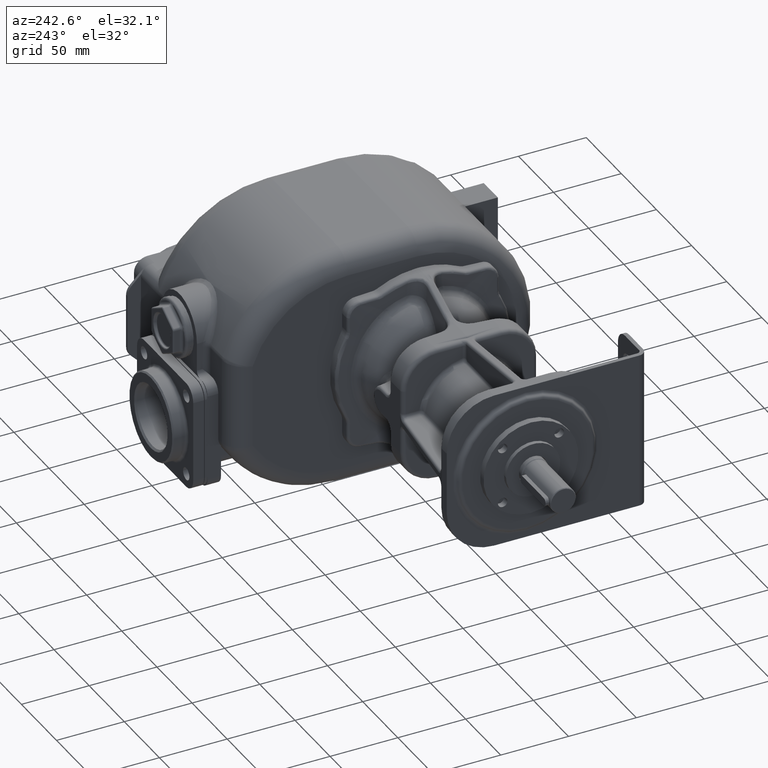
[diagram: clean part render]
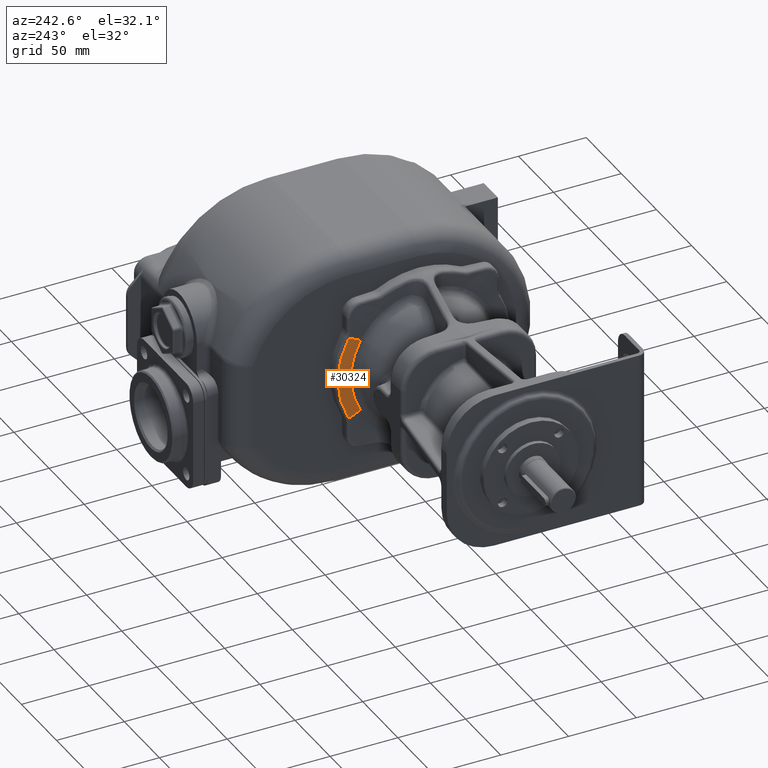
[diagram: same view with one face highlighted and labeled with its STEP entity id]
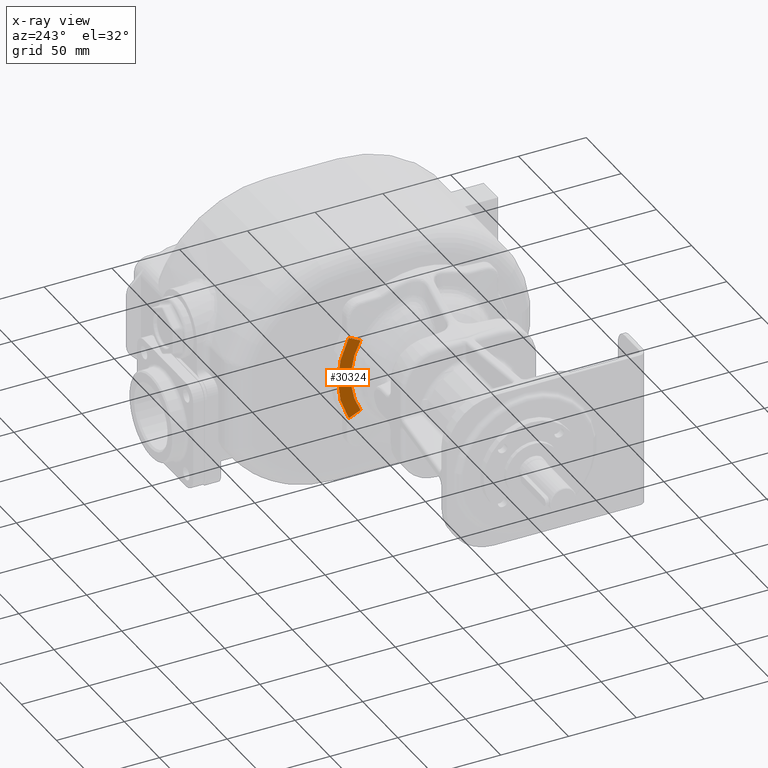
[diagram: x-ray of the same camera — body ghosted, the highlighted face saturated]
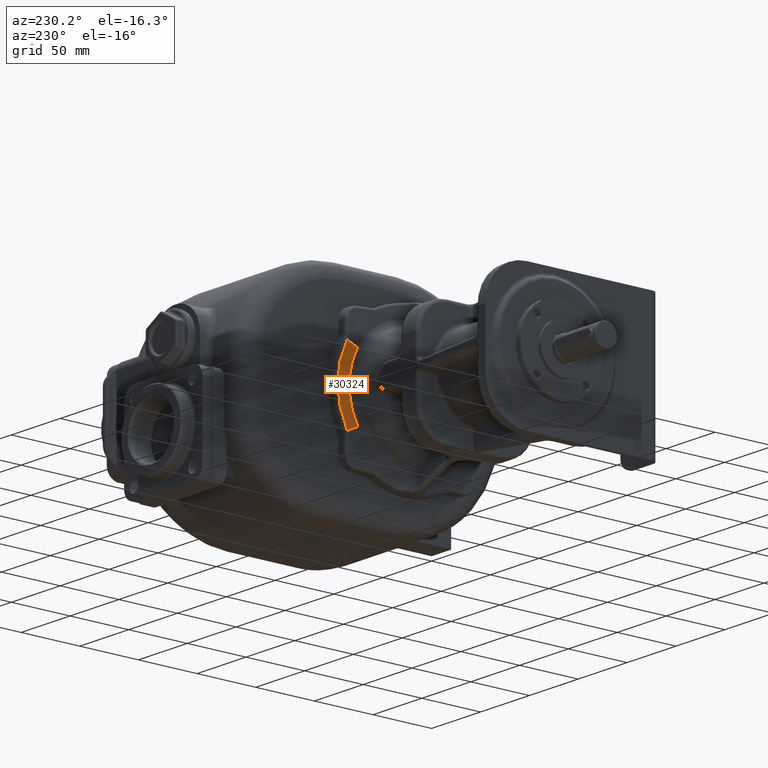
[diagram: same view with one face highlighted and labeled with its STEP entity id]
A machine part, auxiliary view. The second image highlights one B-rep face of the part: STEP entity #30324.
The next image is the same camera in x-ray: the body ghosted, the highlighted face saturated — about 0% of this face is hidden behind the body in this view.
A second angle (auxiliary view) of the same face is appended — the face is thin or edge-on in the first view.
In plain terms, the highlighted conical surface has half-angle 87 deg.
Its self-contained STEP definition (entity closure, byte-faithful):
#7313=CARTESIAN_POINT('',(-7.779622819855E1,1.450565977498E2,
-3.095874498792E1));
#7322=CARTESIAN_POINT('',(-7.779622819855E1,1.450565977498E2,
-3.095874498792E1));
#7323=CARTESIAN_POINT('',(-7.779691626691E1,1.451043890189E2,
-3.084696682974E1));
#7324=CARTESIAN_POINT('',(-7.779806388553E1,1.452033013294E2,
-3.062497038314E1));
#7325=CARTESIAN_POINT('',(-7.779910010205E1,1.453620448852E2,
-3.029589938665E1));
#7326=CARTESIAN_POINT('',(-7.779932993583E1,1.454743085603E2,
-3.008015155920E1));
#7327=CARTESIAN_POINT('',(-7.779932993608E1,1.455321112832E2,
-2.997305846271E1));
#7329=CARTESIAN_POINT('',(-7.779932993608E1,9.E1,0.E0));
#7330=DIRECTION('',(1.E0,0.E0,0.E0));
#7331=DIRECTION('',(0.E0,8.8E-1,-4.749736834815E-1));
#7332=AXIS2_PLACEMENT_3D('',#7329,#7330,#7331);
#7334=CARTESIAN_POINT('',(-7.779932993608E1,1.455321112830E2,2.997305846317E1));
#7335=CARTESIAN_POINT('',(-7.779932993611E1,1.454743078286E2,3.008015291511E1));
#7336=CARTESIAN_POINT('',(-7.779910009382E1,1.453620428584E2,3.029590333531E1));
#7337=CARTESIAN_POINT('',(-7.779806386410E1,1.452032977188E2,3.062497807537E1));
#7338=CARTESIAN_POINT('',(-7.779691619648E1,1.451043847750E2,3.084697647355E1));
#7339=CARTESIAN_POINT('',(-7.779622811526E1,1.450565932593E2,3.095875550185E1));
#7341=CARTESIAN_POINT('',(-7.779622811526E1,1.450565932593E2,3.095875550185E1));
#7342=CARTESIAN_POINT('',(-7.785219829327E1,1.440994341193E2,3.048200894785E1));
#7343=CARTESIAN_POINT('',(-7.796274961760E1,1.422045622097E2,2.954773608716E1));
#7344=CARTESIAN_POINT('',(-7.812448842567E1,1.394172928298E2,2.820621133300E1));
#7345=CARTESIAN_POINT('',(-7.822936019250E1,1.375978461960E2,2.735646837103E1));
#7346=CARTESIAN_POINT('',(-7.828106179183E1,1.366970940565E2,2.694361760994E1));
#7348=CARTESIAN_POINT('',(-7.828106178422E1,9.E1,0.E0));
#7349=DIRECTION('',(-1.E0,0.E0,0.E0));
#7350=DIRECTION('',(0.E0,8.661616077949E-1,4.997640134925E-1));
#7351=AXIS2_PLACEMENT_3D('',#7348,#7349,#7350);
#7353=CARTESIAN_POINT('',(-7.779622819855E1,1.450565977498E2,
-3.095874498792E1));
#7354=CARTESIAN_POINT('',(-7.785209390884E1,1.441012253856E2,
-3.048288776066E1));
#7355=CARTESIAN_POINT('',(-7.796250633667E1,1.422087357109E2,
-2.954978604131E1));
#7356=CARTESIAN_POINT('',(-7.812427347252E1,1.394210309001E2,
-2.820793572549E1));
#7357=CARTESIAN_POINT('',(-7.822926836458E1,1.375994599644E2,
-2.735717895277E1));
#7358=CARTESIAN_POINT('',(-7.828106186794E1,1.366971136251E2,
-2.694358333330E1));
#7372=CARTESIAN_POINT('',(-7.828106179183E1,1.366970940565E2,2.694361760994E1));
#15624=VERTEX_POINT('',#7372);
#15626=CARTESIAN_POINT('',(-7.828106178422E1,1.366971139079E2,
-2.694358346294E1));
#15627=VERTEX_POINT('',#15626);
#15677=VERTEX_POINT('',#7313);
#15679=VERTEX_POINT('',#7327);
#15682=CARTESIAN_POINT('',(-7.779932993608E1,1.455321112830E2,
2.997305846317E1));
#15683=VERTEX_POINT('',#15682);
#15685=VERTEX_POINT('',#7339);
#30309=CARTESIAN_POINT('',(-7.803864495061E1,9.E1,0.E0));
#30310=DIRECTION('',(1.E0,0.E0,0.E0));
#30311=DIRECTION('',(0.E0,-1.E0,0.E0));
#30312=AXIS2_PLACEMENT_3D('',#30309,#30310,#30311);
#30313=CONICAL_SURFACE('',#30312,5.853826940875E1,8.7E1);
#30314=ORIENTED_EDGE('',*,*,#26918,.T.);
#30315=ORIENTED_EDGE('',*,*,#26932,.T.);
#30316=ORIENTED_EDGE('',*,*,#26974,.T.);
#30318=ORIENTED_EDGE('',*,*,#30317,.T.);
#30320=ORIENTED_EDGE('',*,*,#30319,.T.);
#30321=ORIENTED_EDGE('',*,*,#30301,.F.);
#30322=EDGE_LOOP('',(#30314,#30315,#30316,#30318,#30320,#30321));
#30323=FACE_OUTER_BOUND('',#30322,.F.);
#30324=ADVANCED_FACE('',(#30323),#30313,.T.);
#7328=B_SPLINE_CURVE_WITH_KNOTS('',3,(#7322,#7323,#7324,#7325,#7326,#7327),
.UNSPECIFIED.,.F.,.F.,(4,1,1,4),(0.E0,3.333333333333E-1,6.666666666667E-1,1.E0),
.UNSPECIFIED.);
#7333=CIRCLE('',#7332,6.310467191249E1);
#7340=B_SPLINE_CURVE_WITH_KNOTS('',3,(#7334,#7335,#7336,#7337,#7338,#7339),
.UNSPECIFIED.,.F.,.F.,(4,1,1,4),(0.E0,3.333333333333E-1,6.666666666667E-1,1.E0),
.UNSPECIFIED.);
#7347=B_SPLINE_CURVE_WITH_KNOTS('',3,(#7341,#7342,#7343,#7344,#7345,#7346),
.UNSPECIFIED.,.F.,.F.,(4,1,1,4),(0.E0,3.333333333333E-1,6.666666666667E-1,1.E0),
.UNSPECIFIED.);
#7352=CIRCLE('',#7351,5.391268067120E1);
#7359=B_SPLINE_CURVE_WITH_KNOTS('',3,(#7353,#7354,#7355,#7356,#7357,#7358),
.UNSPECIFIED.,.F.,.F.,(4,1,1,4),(0.E0,3.333333333333E-1,6.666666666667E-1,1.E0),
.UNSPECIFIED.);
#26918=EDGE_CURVE('',#15677,#15679,#7328,.T.);
#26932=EDGE_CURVE('',#15679,#15683,#7333,.T.);
#26974=EDGE_CURVE('',#15683,#15685,#7340,.T.);
#30301=EDGE_CURVE('',#15677,#15627,#7359,.T.);
#30317=EDGE_CURVE('',#15685,#15624,#7347,.T.);
#30319=EDGE_CURVE('',#15624,#15627,#7352,.T.);